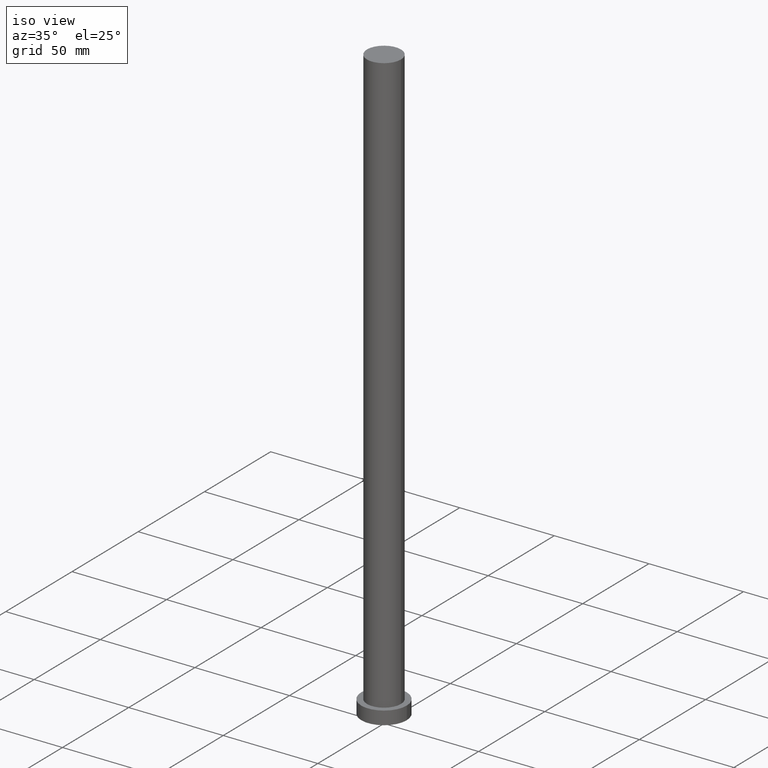
[diagram: clean part render]
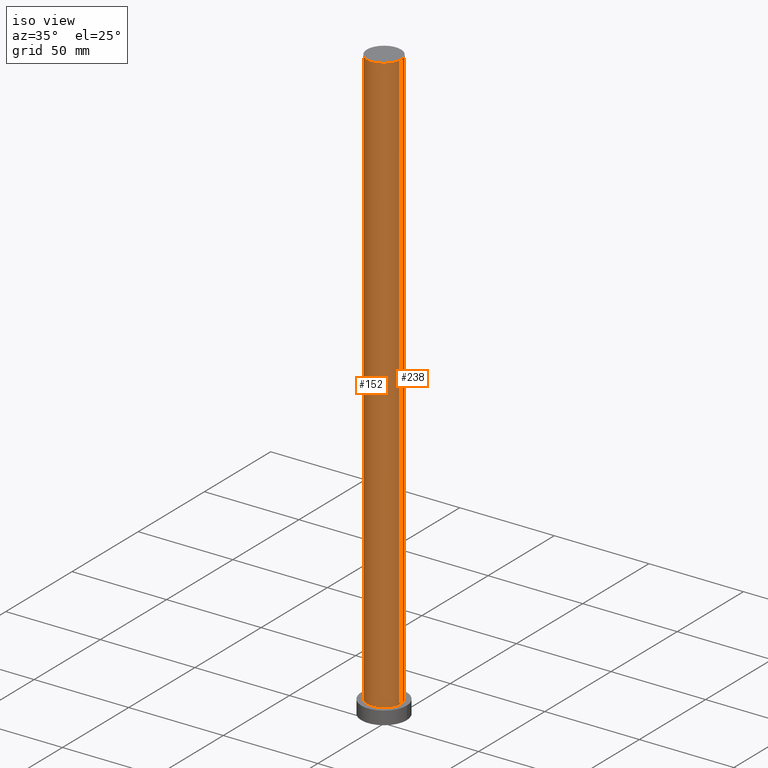
[diagram: same view with one multi-face feature highlighted, each face labeled with its STEP entity id]
A machine part, iso view. The highlighted faces form ONE feature: a constant-radius fillet chain: 2 tangent blend faces with common blend radius 9 mm. The faces share edges in the B-rep.
Their STEP definitions:
[1] entity #152 (Cylinder):
#5 = CARTESIAN_POINT ( 'NONE',  ( -9.000000000000001776, 0.000000000000000000, 315.0000000000000000 ) ) ;
#6 = LINE ( 'NONE', #171, #160 ) ;
#11 = CARTESIAN_POINT ( 'NONE',  ( 9.000000000000001776, 1.102182119232617911E-15, 7.000000000000000000 ) ) ;
#12 = CARTESIAN_POINT ( 'NONE',  ( -9.000000000000001776, 0.000000000000000000, 7.000000000000000000 ) ) ;
#19 = DIRECTION ( 'NONE',  ( -0.000000000000000000, -0.000000000000000000, -1.000000000000000000 ) ) ;
#23 = EDGE_CURVE ( 'NONE', #53, #240, #164, .T. ) ;
#24 = AXIS2_PLACEMENT_3D ( 'NONE', #39, #19, #208 ) ;
#30 = DIRECTION ( 'NONE',  ( 0.000000000000000000, 0.000000000000000000, 1.000000000000000000 ) ) ;
#31 = EDGE_CURVE ( 'NONE', #240, #73, #184, .T. ) ;
#39 = CARTESIAN_POINT ( 'NONE',  ( 0.000000000000000000, 0.000000000000000000, 315.0000000000000000 ) ) ;
#41 = EDGE_CURVE ( 'NONE', #53, #251, #6, .T. ) ;
#53 = VERTEX_POINT ( 'NONE', #5 ) ;
#55 = DIRECTION ( 'NONE',  ( 1.000000000000000000, 0.000000000000000000, 0.000000000000000000 ) ) ;
#57 = ORIENTED_EDGE ( 'NONE', *, *, #147, .T. ) ;
#73 = VERTEX_POINT ( 'NONE', #11 ) ;
#88 = VECTOR ( 'NONE', #204, 1000.000000000000000 ) ;
#99 = DIRECTION ( 'NONE',  ( 0.000000000000000000, 0.000000000000000000, 1.000000000000000000 ) ) ;
#104 = CARTESIAN_POINT ( 'NONE',  ( 0.000000000000000000, 0.000000000000000000, 7.000000000000000000 ) ) ;
#107 = CIRCLE ( 'NONE', #244, 9.000000000000001776 ) ;
#112 = ORIENTED_EDGE ( 'NONE', *, *, #31, .F. ) ;
#147 = EDGE_CURVE ( 'NONE', #251, #73, #107, .T. ) ;
#149 = CARTESIAN_POINT ( 'NONE',  ( 9.000000000000001776, 1.102182119232617911E-15, 315.0000000000000000 ) ) ;
#152 = ADVANCED_FACE ( 'NONE', ( #153 ), #231, .T. ) ;
#153 = FACE_OUTER_BOUND ( 'NONE', #169, .T. ) ;
#160 = VECTOR ( 'NONE', #247, 1000.000000000000000 ) ;
#164 = CIRCLE ( 'NONE', #218, 9.000000000000001776 ) ;
#169 = EDGE_LOOP ( 'NONE', ( #112, #220, #174, #57 ) ) ;
#171 = CARTESIAN_POINT ( 'NONE',  ( -9.000000000000001776, 0.000000000000000000, 315.0000000000000000 ) ) ;
#174 = ORIENTED_EDGE ( 'NONE', *, *, #41, .T. ) ;
#179 = CARTESIAN_POINT ( 'NONE',  ( 9.000000000000001776, 1.102182119232617911E-15, 315.0000000000000000 ) ) ;
#181 = CARTESIAN_POINT ( 'NONE',  ( 0.000000000000000000, 0.000000000000000000, 315.0000000000000000 ) ) ;
#184 = LINE ( 'NONE', #149, #88 ) ;
#204 = DIRECTION ( 'NONE',  ( -0.000000000000000000, -0.000000000000000000, -1.000000000000000000 ) ) ;
#208 = DIRECTION ( 'NONE',  ( -1.000000000000000000, 0.000000000000000000, 0.000000000000000000 ) ) ;
#218 = AXIS2_PLACEMENT_3D ( 'NONE', #181, #30, #55 ) ;
#220 = ORIENTED_EDGE ( 'NONE', *, *, #23, .F. ) ;
#231 = CYLINDRICAL_SURFACE ( 'NONE', #24, 9.000000000000001776 ) ;
#240 = VERTEX_POINT ( 'NONE', #179 ) ;
#244 = AXIS2_PLACEMENT_3D ( 'NONE', #104, #99, #253 ) ;
#247 = DIRECTION ( 'NONE',  ( -0.000000000000000000, -0.000000000000000000, -1.000000000000000000 ) ) ;
#251 = VERTEX_POINT ( 'NONE', #12 ) ;
#253 = DIRECTION ( 'NONE',  ( 1.000000000000000000, 0.000000000000000000, 0.000000000000000000 ) ) ;
[2] entity #238 (Cylinder):
#5 = CARTESIAN_POINT ( 'NONE',  ( -9.000000000000001776, 0.000000000000000000, 315.0000000000000000 ) ) ;
#6 = LINE ( 'NONE', #171, #160 ) ;
#11 = CARTESIAN_POINT ( 'NONE',  ( 9.000000000000001776, 1.102182119232617911E-15, 7.000000000000000000 ) ) ;
#12 = CARTESIAN_POINT ( 'NONE',  ( -9.000000000000001776, 0.000000000000000000, 7.000000000000000000 ) ) ;
#27 = EDGE_CURVE ( 'NONE', #240, #53, #54, .T. ) ;
#31 = EDGE_CURVE ( 'NONE', #240, #73, #184, .T. ) ;
#41 = EDGE_CURVE ( 'NONE', #53, #251, #6, .T. ) ;
#43 = CARTESIAN_POINT ( 'NONE',  ( 0.000000000000000000, 0.000000000000000000, 315.0000000000000000 ) ) ;
#53 = VERTEX_POINT ( 'NONE', #5 ) ;
#54 = CIRCLE ( 'NONE', #192, 9.000000000000001776 ) ;
#60 = DIRECTION ( 'NONE',  ( 0.000000000000000000, 0.000000000000000000, 1.000000000000000000 ) ) ;
#61 = AXIS2_PLACEMENT_3D ( 'NONE', #194, #60, #132 ) ;
#73 = VERTEX_POINT ( 'NONE', #11 ) ;
#78 = DIRECTION ( 'NONE',  ( -1.000000000000000000, 0.000000000000000000, 0.000000000000000000 ) ) ;
#88 = VECTOR ( 'NONE', #204, 1000.000000000000000 ) ;
#96 = ORIENTED_EDGE ( 'NONE', *, *, #157, .T. ) ;
#119 = FACE_OUTER_BOUND ( 'NONE', #146, .T. ) ;
#129 = DIRECTION ( 'NONE',  ( 0.000000000000000000, 0.000000000000000000, 1.000000000000000000 ) ) ;
#131 = ORIENTED_EDGE ( 'NONE', *, *, #41, .F. ) ;
#132 = DIRECTION ( 'NONE',  ( 1.000000000000000000, 0.000000000000000000, 0.000000000000000000 ) ) ;
#145 = DIRECTION ( 'NONE',  ( 1.000000000000000000, 0.000000000000000000, 0.000000000000000000 ) ) ;
#146 = EDGE_LOOP ( 'NONE', ( #168, #243, #96, #131 ) ) ;
#149 = CARTESIAN_POINT ( 'NONE',  ( 9.000000000000001776, 1.102182119232617911E-15, 315.0000000000000000 ) ) ;
#157 = EDGE_CURVE ( 'NONE', #73, #251, #198, .T. ) ;
#160 = VECTOR ( 'NONE', #247, 1000.000000000000000 ) ;
#168 = ORIENTED_EDGE ( 'NONE', *, *, #27, .F. ) ;
#171 = CARTESIAN_POINT ( 'NONE',  ( -9.000000000000001776, 0.000000000000000000, 315.0000000000000000 ) ) ;
#175 = CYLINDRICAL_SURFACE ( 'NONE', #219, 9.000000000000001776 ) ;
#176 = DIRECTION ( 'NONE',  ( -0.000000000000000000, -0.000000000000000000, -1.000000000000000000 ) ) ;
#179 = CARTESIAN_POINT ( 'NONE',  ( 9.000000000000001776, 1.102182119232617911E-15, 315.0000000000000000 ) ) ;
#184 = LINE ( 'NONE', #149, #88 ) ;
#187 = CARTESIAN_POINT ( 'NONE',  ( 0.000000000000000000, 0.000000000000000000, 315.0000000000000000 ) ) ;
#192 = AXIS2_PLACEMENT_3D ( 'NONE', #187, #129, #145 ) ;
#194 = CARTESIAN_POINT ( 'NONE',  ( 0.000000000000000000, 0.000000000000000000, 7.000000000000000000 ) ) ;
#198 = CIRCLE ( 'NONE', #61, 9.000000000000001776 ) ;
#204 = DIRECTION ( 'NONE',  ( -0.000000000000000000, -0.000000000000000000, -1.000000000000000000 ) ) ;
#219 = AXIS2_PLACEMENT_3D ( 'NONE', #43, #176, #78 ) ;
#238 = ADVANCED_FACE ( 'NONE', ( #119 ), #175, .T. ) ;
#240 = VERTEX_POINT ( 'NONE', #179 ) ;
#243 = ORIENTED_EDGE ( 'NONE', *, *, #31, .T. ) ;
#247 = DIRECTION ( 'NONE',  ( -0.000000000000000000, -0.000000000000000000, -1.000000000000000000 ) ) ;
#251 = VERTEX_POINT ( 'NONE', #12 ) ;